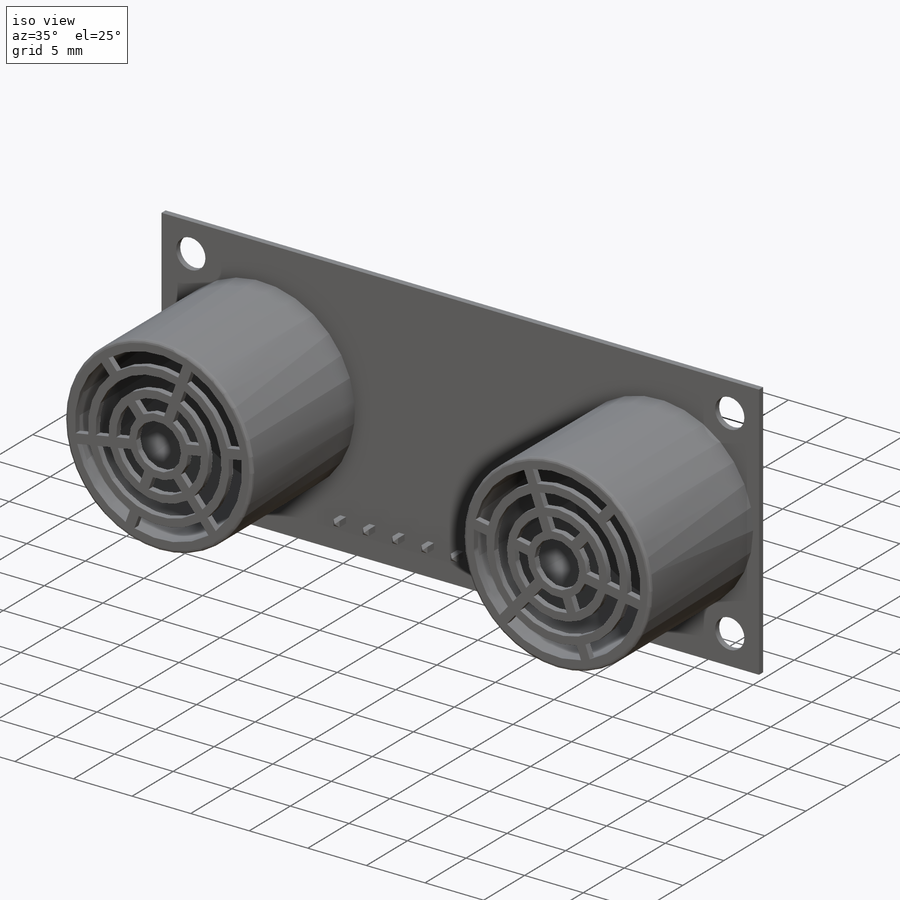
[diagram: iso view]
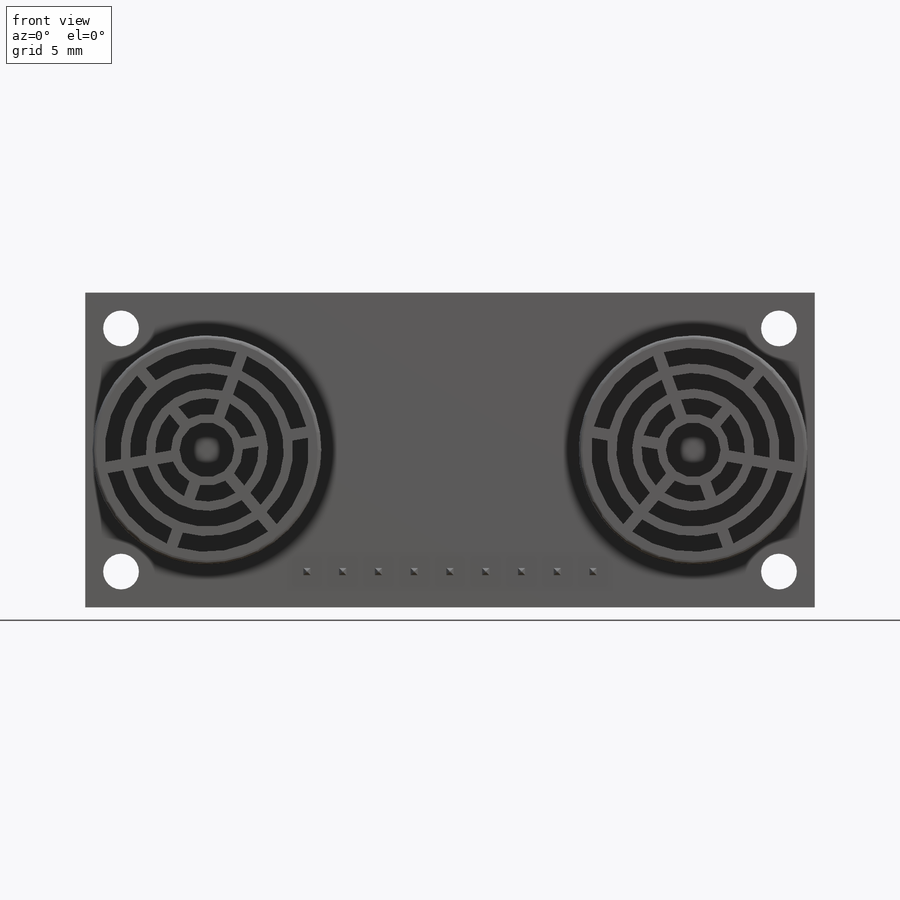
[diagram: front view]
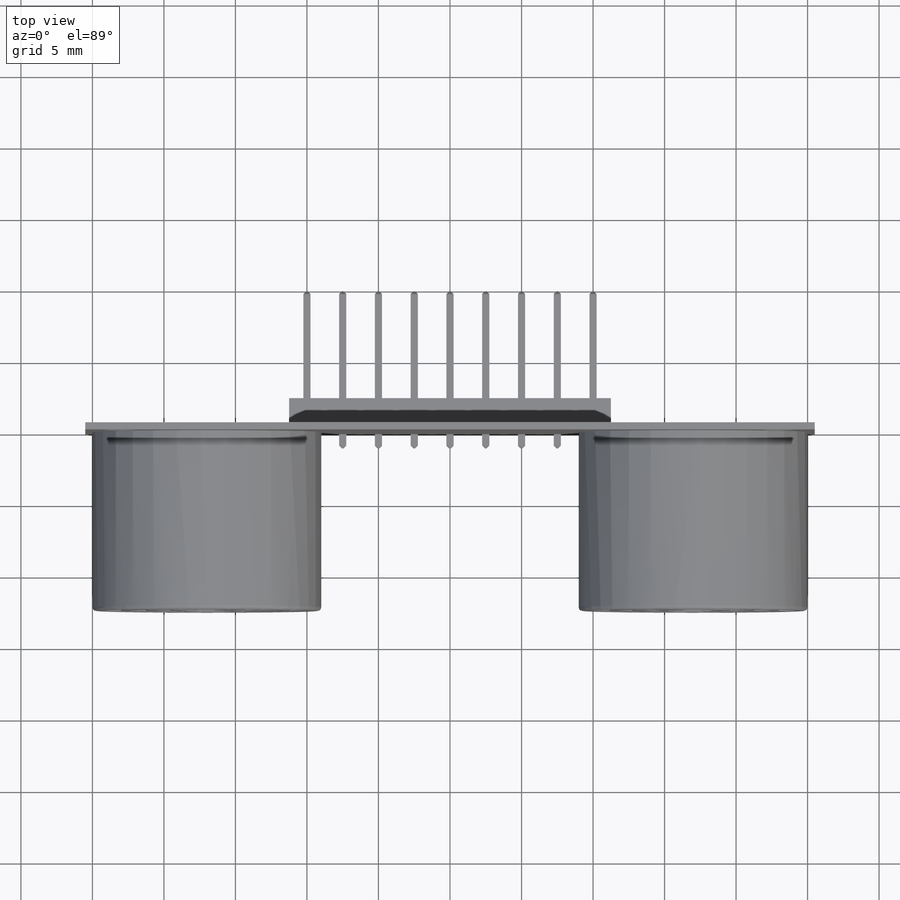
[diagram: top view]
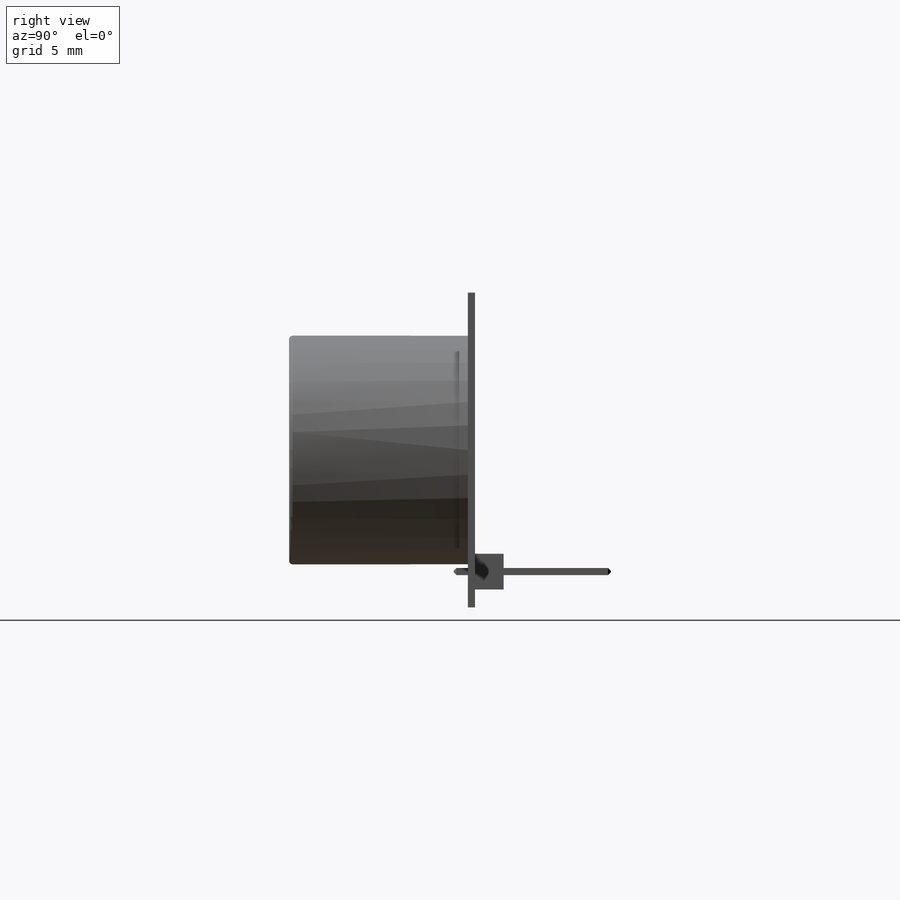
[diagram: right view]
SOLIDWORKS PART (.sldprt)
format: sldprt  version: not decoded by parser v0  size: 958,464 bytes
history: native  units: mm
features: sketch x7, extrude x4, plane x3, material x1, shell x1, pattern_circular x1, fillet x1, cut_extrude x1, mirror x1, chamfer x1, pattern_linear x1 (+9 scaffold rows collapsed)
feature tree (31):
  scaffold x9  (default folders/planes/origin — collapsed)
  material  "Материал <не указан>"
  plane  "Спереди"
  plane  "Сверху"
  plane  "Справа"
  sketch  "Эскиз1"  dims[D5=2.5mm D1=22.0mm D2=51.0mm D3=17.0mm D4=46.0mm]
  extrude  "Бобышка-Вытянуть1"  Depth=0.5mm
  sketch  "Эскиз2"  dims[D1=16.0mm D2=34.0mm]
  extrude  "Бобышка-Вытянуть2"  Depth=13mm
  shell  "Оболочка1"  Thickness=0.5mm
  sketch  "Эскиз3"  dims[D1=~0.867053mm D5=1.1mm D6=1.0mm D7=5.0mm]
  sketch  "Эскиз4"  dims[c1.D1=~4.579367mm c2.D1=60.0deg c2.D2=1.0mm c3.D2=10.0deg c3.D1=0.5mm c3.D5=0.8mm c3.D6=1.0mm c3.D7=5.0mm]
  pattern_circular  "Круговой массив2"  Count=3 Angle=360deg
  fillet  "Скругление1"  Radius=0.25mm
  sketch  "Эскиз5"  dims[D1=0.6mm]
  cut_extrude  "Вырез-Вытянуть1"  [1 undecoded]
  mirror  "Зеркальное отражение1"
  sketch  "Эскиз6"  dims[D1=0.5mm D2=2.5mm D3=2.5mm D4=2.5mm]
  extrude  "Бобышка-Вытянуть3"  Depth=2mm
  extrude  "Бобышка-Вытянуть5"  [1 undecoded]
  sketch  "Эскиз6<2>"  dims[D1=1.0mm D2=10.0mm]
  chamfer  "Фаска1"  Distance=0.2mm Angle=45deg
  pattern_linear  "Линейный массив1"  Count1=5 Count2=5 Spacing1=2.5mm Spacing2=2.5mm
decode coverage: 15 of 18 modeling features carry decoded parameters
note: ~ marks probable driven/reference dimensions
note: 2 parameter values undecoded
note: suppression state not decoded; provenance and decode notes live in map.json
